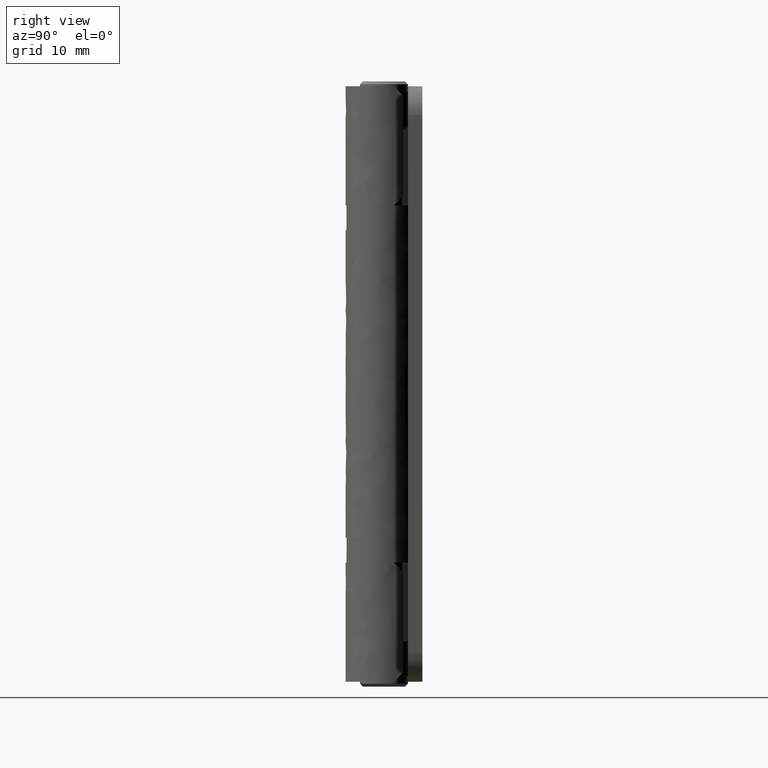
[diagram: clean part render]
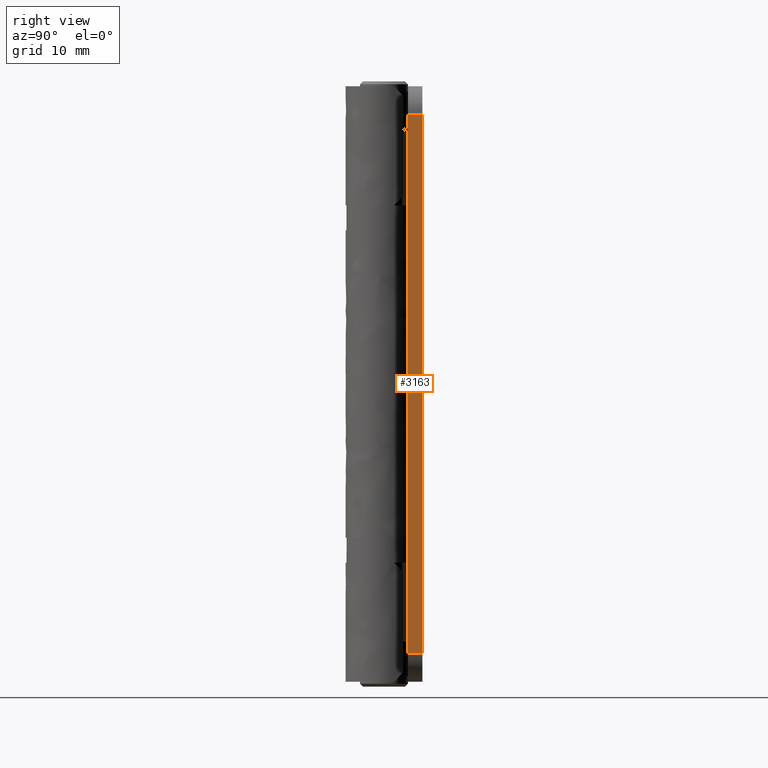
[diagram: same view with one face highlighted and labeled with its STEP entity id]
A machine part, right view. The second image highlights one B-rep face of the part: STEP entity #3163.
In plain terms, the highlighted face is a freeform B-spline surface patch.
Its self-contained STEP definition (entity closure, byte-faithful):
#3128=CARTESIAN_POINT('',(21.000000000000249,2.425075002907852,0.202800108538863));
#3129=CARTESIAN_POINT('',(21.000000000000249,2.425075002907852,61.797201393498177));
#3130=CARTESIAN_POINT('',(21.000000000000249,4.074925037326593,0.202800108538863));
#3131=CARTESIAN_POINT('',(21.000000000000249,4.074925037326593,61.797201393498177));
#3132=B_SPLINE_SURFACE_WITH_KNOTS('',1,1,((#3128,#3130),(#3129,#3131)),.UNSPECIFIED.,.F.,.F.,.U.,(2,2),(2,2),(0.0,61.594401284959311),(0.041708334948495,0.958291687403247),.UNSPECIFIED.);
#3133=CARTESIAN_POINT('',(21.000000000000249,4.000000000000740,59.0));
#3134=VERTEX_POINT('',#3133);
#3135=CARTESIAN_POINT('',(21.000000000000249,4.000000000000740,3.0));
#3136=VERTEX_POINT('',#3135);
#3137=CARTESIAN_POINT('',(21.000000000000249,4.000000000000740,59.0));
#3138=CARTESIAN_POINT('',(21.000000000000249,4.000000000000740,3.0));
#3139=QUASI_UNIFORM_CURVE('',1,(#3137,#3138),.UNSPECIFIED.,.F.,.U.);
#3140=EDGE_CURVE('',#3134,#3136,#3139,.T.);
#3141=ORIENTED_EDGE('',*,*,#3140,.F.);
#3142=CARTESIAN_POINT('',(21.0,2.500000000000570,59.0));
#3143=VERTEX_POINT('',#3142);
#3144=CARTESIAN_POINT('',(21.000000000000249,4.000000000000740,59.0));
#3145=CARTESIAN_POINT('',(21.0,2.500000000000570,59.0));
#3146=QUASI_UNIFORM_CURVE('',1,(#3144,#3145),.UNSPECIFIED.,.F.,.U.);
#3147=EDGE_CURVE('',#3134,#3143,#3146,.T.);
#3148=ORIENTED_EDGE('',*,*,#3147,.T.);
#3149=CARTESIAN_POINT('',(21.0,2.500000000000570,3.0));
#3150=VERTEX_POINT('',#3149);
#3151=CARTESIAN_POINT('',(21.0,2.500000000000570,59.0));
#3152=CARTESIAN_POINT('',(21.0,2.500000000000570,3.0));
#3153=QUASI_UNIFORM_CURVE('',1,(#3151,#3152),.UNSPECIFIED.,.F.,.U.);
#3154=EDGE_CURVE('',#3143,#3150,#3153,.T.);
#3155=ORIENTED_EDGE('',*,*,#3154,.T.);
#3156=CARTESIAN_POINT('',(21.0,2.500000000000570,3.0));
#3157=CARTESIAN_POINT('',(21.000000000000249,4.000000000000740,3.0));
#3158=QUASI_UNIFORM_CURVE('',1,(#3156,#3157),.UNSPECIFIED.,.F.,.U.);
#3159=EDGE_CURVE('',#3150,#3136,#3158,.T.);
#3160=ORIENTED_EDGE('',*,*,#3159,.T.);
#3161=EDGE_LOOP('',(#3141,#3148,#3155,#3160));
#3162=FACE_OUTER_BOUND('',#3161,.T.);
#3163=ADVANCED_FACE('',(#3162),#3132,.F.);